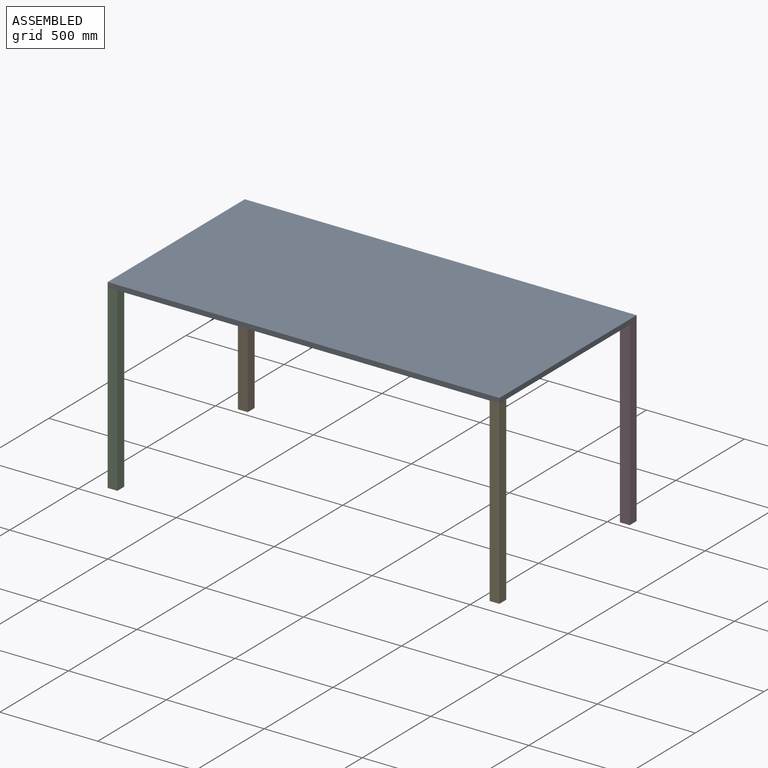
[diagram: assembled view]
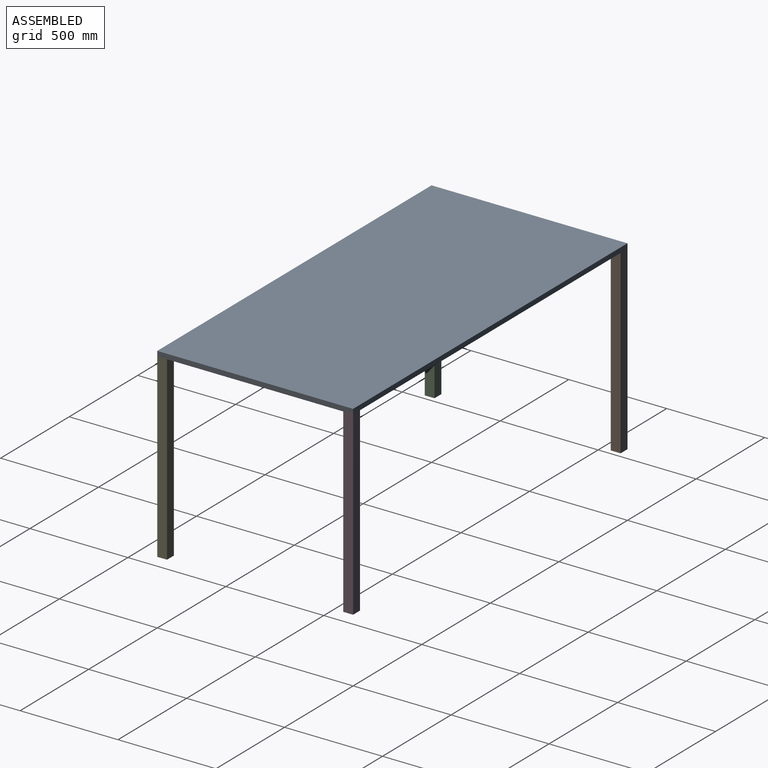
[diagram: assembled view, second angle]
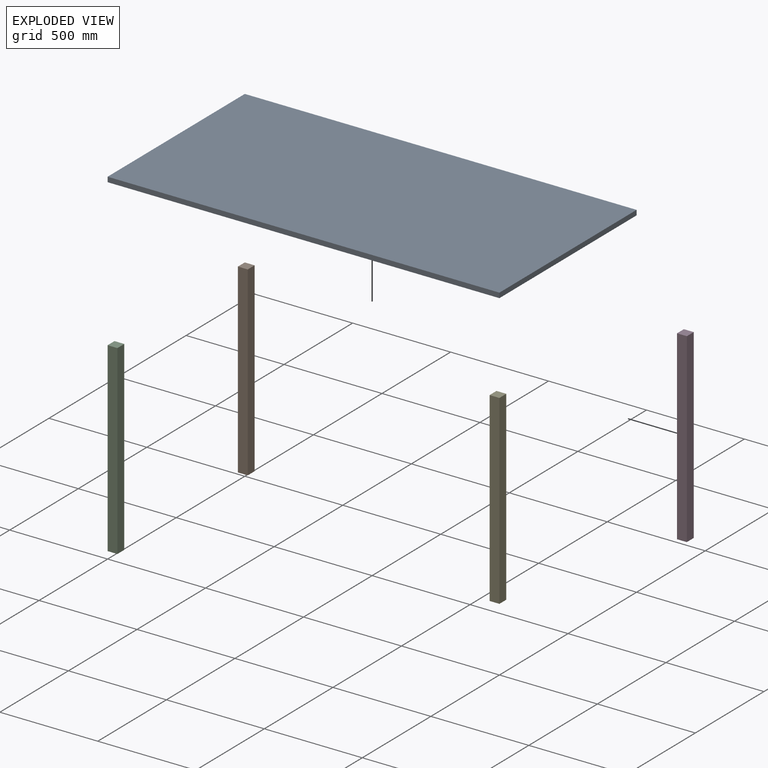
[diagram: exploded view]
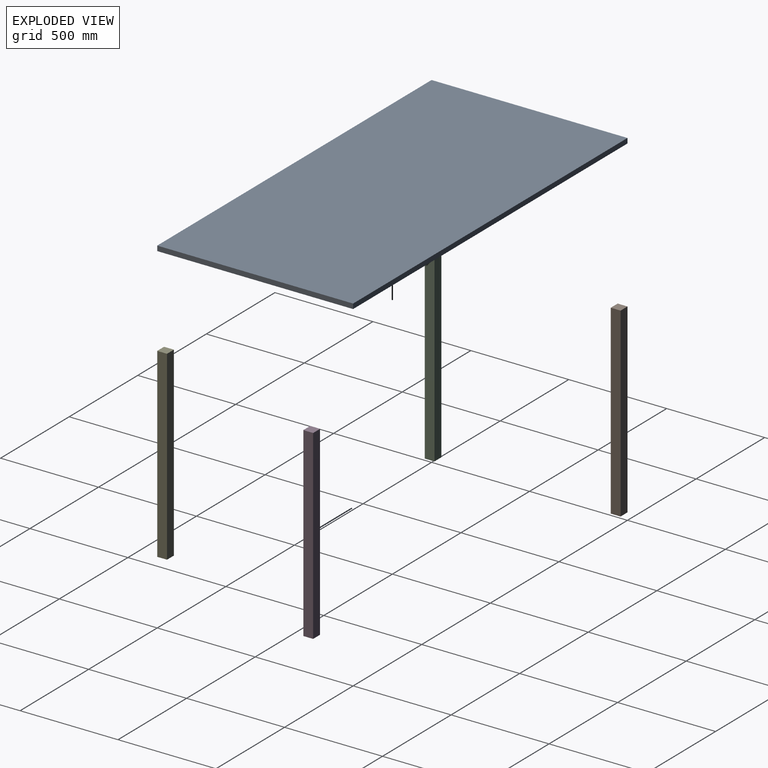
[diagram: exploded view, second angle]
ASSEMBLY  parts=5 mates=3
PART A: 6 faces, bbox 2000x1000x25.4 mm
  f0: plane 1000x25.4mm, normal (-1,0,0), area 25400mm2, adj f1,f3,f4,f5
  f1: plane 2000x25.4mm, normal (0,-1,0), area 50800mm2, adj f0,f2,f4,f5
  f2: plane 1000x25.4mm, normal (1,0,0), area 25400mm2, adj f1,f3,f4,f5
  f3: plane 2000x25.4mm, normal (0,1,0), area 50800mm2, adj f0,f2,f4,f5
  f4: plane 2000x1000mm, normal (0,0,1), area 2000000mm2, adj f0,f1,f2,f3
  f5: plane 2000x1000mm, normal (0,0,-1), area 2000000mm2, adj f0,f1,f2,f3
PART B: 6 faces, bbox 50x50x950 mm
  f0: plane 950x50mm, normal (0,-1,0), area 47500mm2, adj f1,f3,f4,f5
  f1: plane 950x50mm, normal (1,0,0), area 47500mm2, adj f0,f2,f4,f5
  f2: plane 950x50mm, normal (0,1,0), area 47500mm2, adj f1,f3,f4,f5
  f3: plane 950x50mm, normal (-1,0,0), area 47500mm2, adj f0,f2,f4,f5
  f4: plane 50x50mm, normal (0,0,1), area 2500mm2, adj f0,f1,f2,f3
  f5: plane 50x50mm, normal (0,0,-1), area 2500mm2, adj f0,f1,f2,f3
PART C: same geometry as B
PART D: same geometry as B
PART E: same geometry as B
PLACE A at identity fixed
PLACE B t=(-975,475,-924.6)mm
PLACE C t=(-975,-475,-924.6)mm
PLACE D t=(975,475,-924.6)mm
PLACE E t=(975,-475,-924.6)mm
MATE planar C.f4 <-> A.f4  axis (0,0,1) through (-1000,-500,25.4)mm
MATE planar C.f0 <-> A.f1  axis (0,-1,0) through (-975,-500,-449.6)mm
MATE planar C.f3 <-> A.f0  axis (-1,0,0) through (-1000,-475,-449.6)mm
